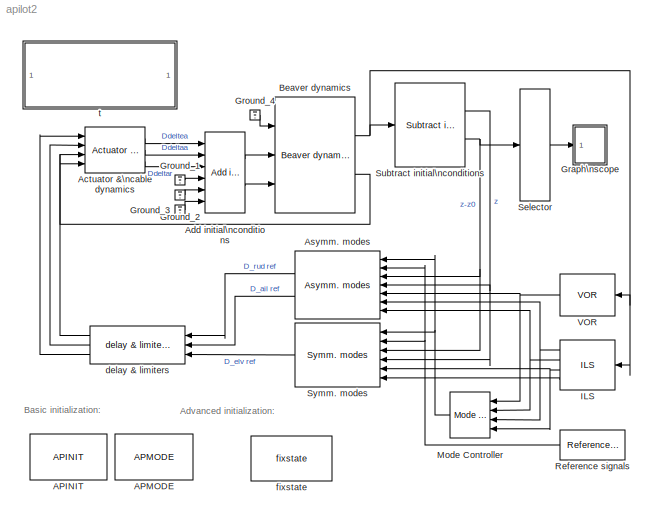
MODEL apilot2
KIND model
BLOCK [Reference] APINIT  REF=fbuttons/APINIT
  Ports = []
  SID = 1
  SourceBlock = fbuttons/APINIT
BLOCK [Reference] APMODE  REF=fbuttons/APMODE
  Ports = []
  SID = 2
  SourceBlock = fbuttons/APMODE
BLOCK [Reference] Actuator &\ncable dynamics  REF=aplib/Actuator &\ncable dynamics  (lib defined in mdl_249329580cc9)
  Ports = [4, 3]
  SID = 3
  SourceBlock = aplib/Actuator &\ncable dynamics
  SourceType = Actuator and cable dynamics
BLOCK [Reference] Add initial\nconditions  REF=aplib/Add initial\nconditions  (lib defined in mdl_249329580cc9)
  Ports = [6, 2]
  SID = 4
  SourceBlock = aplib/Add initial\nconditions
BLOCK [Reference] Asymm. modes  REF=aplib/Asymm. modes  (lib defined in mdl_249329580cc9)
  Ports = [7, 2]
  SID = 5
  SourceBlock = aplib/Asymm. modes
  SourceType = Asymmetrical autopilot modes
BLOCK [Reference] Beaver dynamics  REF=fdclib10/Beaver dynamics\nfor autopilot models
  Ports = [3, 2]
  SID = 6
  SourceBlock = fdclib10/Beaver dynamics\nfor autopilot models
  SourceType = SubSystem
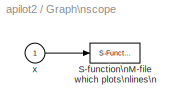
BLOCK [SubSystem] Graph\nscope
  Ports = [1]
  RequestExecContextInheritance = off
  SID = 7
  ShowPortLabels = none
BLOCK [S-Function] Graph\nscope/S-function\nM-file which plots\nlines\n
  CopyFcn = sfunyst([],[],[],'CopyBlock')
  DeleteFcn = sfunyst([],[],[],'DeleteBlock')
  EnableBusSupport = off
  FunctionName = sfunyst
  LoadFcn = sfunyst([],[],[],'LoadBlock')
  Parameters = ax, color, npts
  Ports = [1]
  SFcnIsStateOwnerBlock = off
  SFunctionDeploymentMode = off
  SID = 9
BLOCK [Inport] Graph\nscope/x
  IconDisplay = Port number
  SID = 8
BLOCK [Ground] Ground_1
  SID = 10
BLOCK [Ground] Ground_2
  SID = 11
BLOCK [Ground] Ground_3
  SID = 12
BLOCK [Ground] Ground_4
  SID = 13
BLOCK [Reference] ILS  REF=aplib/ILS   (lib defined in mdl_249329580cc9)
  Ports = [1, 4]
  SID = 14
  SourceBlock = aplib/ILS
BLOCK [Reference] Mode Controller  REF=aplib/Mode Controller  (lib defined in mdl_249329580cc9)
  Ports = [4, 1]
  SID = 15
  SourceBlock = aplib/Mode Controller
  SourceType = Mode Controller
BLOCK [Reference] Reference signals  REF=aplib/Reference signals  (lib defined in mdl_249329580cc9)
  Ports = [0, 1]
  SID = 16
  SourceBlock = aplib/Reference signals
  SourceType = Reference signals
BLOCK [Selector] Selector
  IndexOptions = Index vector (dialog)
  Indices = 8
  InputPortWidth = 13
  OutputSizes = 1
  Ports = [1, 1]
  SID = 17
BLOCK [Reference] Subtract initial\nconditions  REF=aplib/Subtract initial\nconditions  (lib defined in mdl_249329580cc9)
  Ports = [1, 2]
  SID = 18
  SourceBlock = aplib/Subtract initial\nconditions
BLOCK [Reference] Symm. modes  REF=aplib/Symm. modes  (lib defined in mdl_249329580cc9)
  Ports = [6, 1]
  SID = 19
  SourceBlock = aplib/Symm. modes
  SourceType = Symmetrical autopilot modes
BLOCK [Reference] VOR  REF=aplib/VOR  (lib defined in mdl_249329580cc9)
  Ports = [1, 1]
  SID = 20
  SourceBlock = aplib/VOR
BLOCK [Reference] delay & limiters  REF=aplib/delay & limiters  (lib defined in mdl_249329580cc9)
  Ports = [3, 3]
  SID = 21
  SourceBlock = aplib/delay & limiters
  SourceType = Computational delay and limiters
BLOCK [Reference] fixstate  REF=fbuttons/fixstate
  Ports = []
  SID = 22
  SourceBlock = fbuttons/fixstate
  SourceType = fixstate
BLOCK [SubSystem] t
  OpenFcn = browse apilot
  Ports = []
  RequestExecContextInheritance = off
  SID = 23
  ShowPortLabels = none
ANNOTATION (root): Advanced initialization:
ANNOTATION (root): Basic initialization:
LINE Actuator &\ncable dynamics:1 -> Add initial\nconditions:1
LINE Actuator &\ncable dynamics:2 -> Add initial\nconditions:2
LINE Actuator &\ncable dynamics:3 -> Add initial\nconditions:3
LINE Add initial\nconditions:1 -> Beaver dynamics:2
LINE Add initial\nconditions:2 -> Beaver dynamics:3
LINE Asymm. modes:1 -> delay & limiters:1
LINE Asymm. modes:2 -> delay & limiters:2
NET Beaver dynamics:1 -> ILS:1, Subtract initial\nconditions:1, VOR:1
LINE Beaver dynamics:2 -> Actuator &\ncable dynamics:4
LINE Graph\nscope/x:1 -> Graph\nscope/S-function\nM-file which plots\nlines\n:1
LINE Ground_1:1 -> Add initial\nconditions:4
LINE Ground_2:1 -> Add initial\nconditions:5
LINE Ground_3:1 -> Add initial\nconditions:6
LINE Ground_4:1 -> Beaver dynamics:1
NET ILS:1 -> Asymm. modes:6, Mode Controller:3
NET ILS:2 -> Asymm. modes:7, Mode Controller:2
NET ILS:3 -> Mode Controller:4, Symm. modes:5
LINE ILS:4 -> Symm. modes:6
NET Mode Controller:1 -> Asymm. modes:1, Symm. modes:1
NET Reference signals:1 -> Asymm. modes:2, Symm. modes:2
LINE Selector:1 -> Graph\nscope:1
NET Subtract initial\nconditions:1 -> Asymm. modes:4, Symm. modes:4
NET Subtract initial\nconditions:2 -> Asymm. modes:3, Selector:1, Symm. modes:3
LINE Symm. modes:1 -> delay & limiters:3
NET VOR:1 -> Asymm. modes:5, Mode Controller:1
LINE delay & limiters:1 -> Actuator &\ncable dynamics:3
LINE delay & limiters:2 -> Actuator &\ncable dynamics:2
LINE delay & limiters:3 -> Actuator &\ncable dynamics:1
note: NET lines group one-source signal fan-out (src -> all destinations, sorted); 1:1 wires keep LINE
